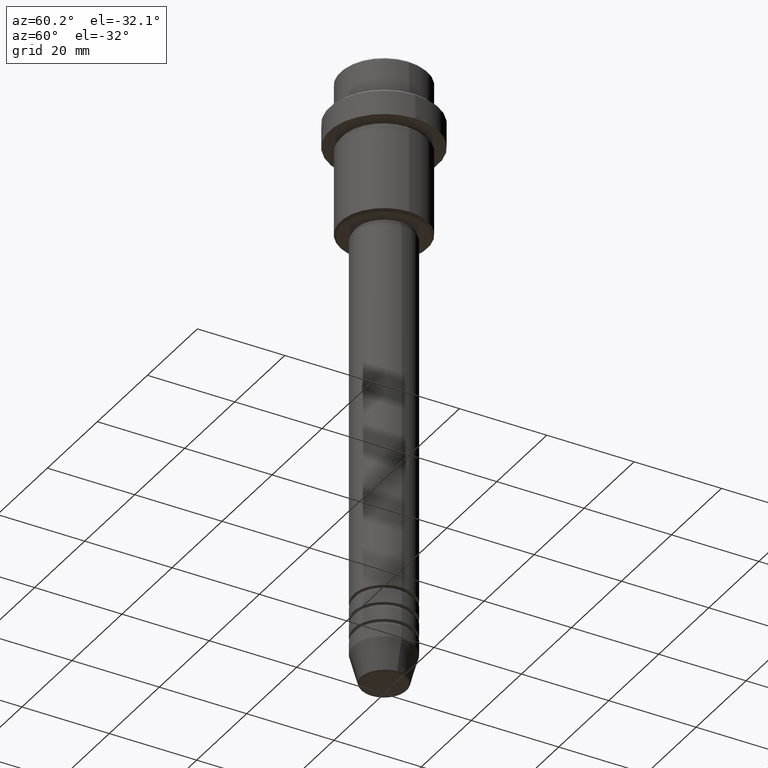
[diagram: clean part render]
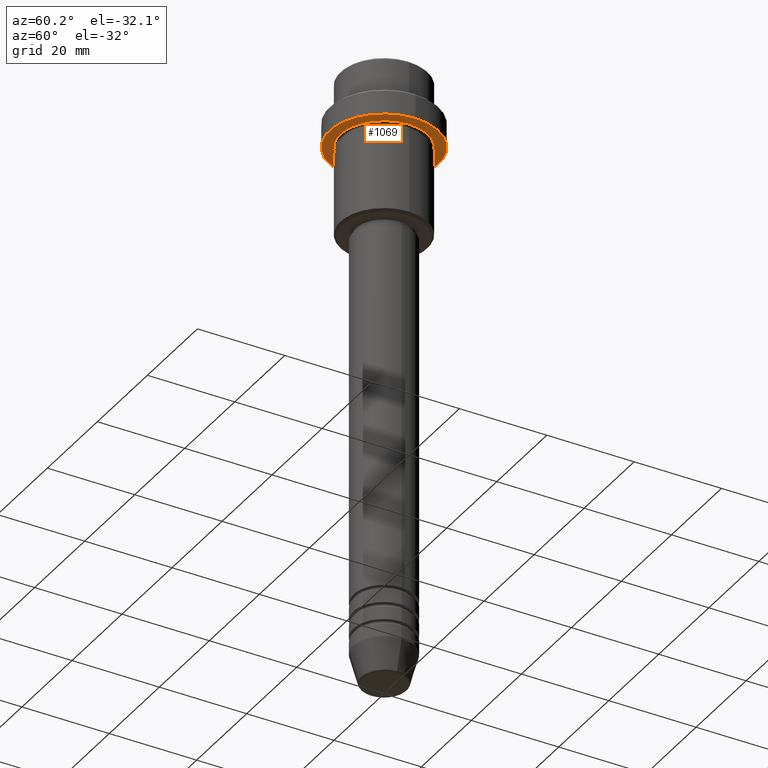
[diagram: same view with one face highlighted and labeled with its STEP entity id]
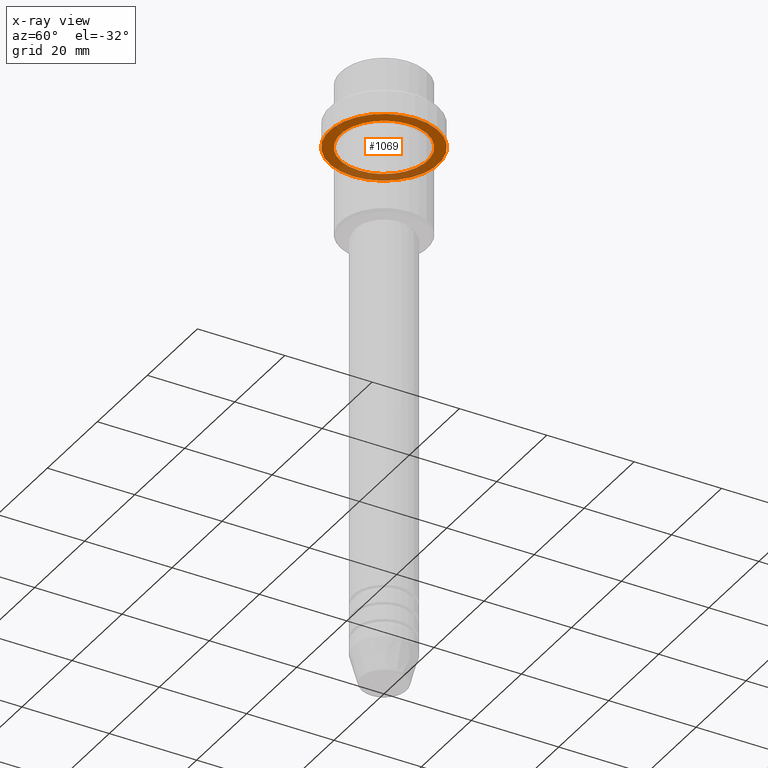
[diagram: x-ray of the same camera — body ghosted, the highlighted face saturated]
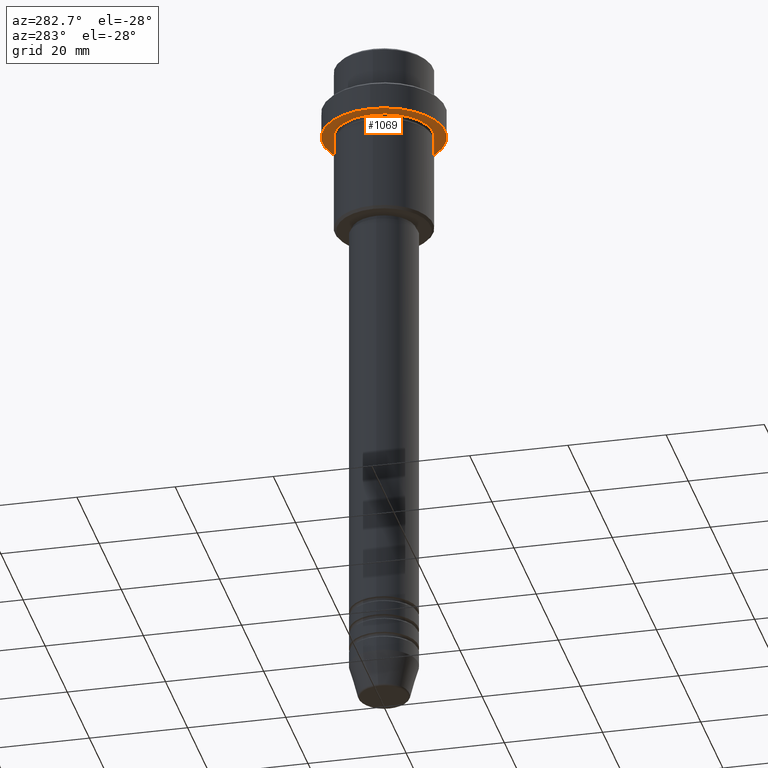
[diagram: same view with one face highlighted and labeled with its STEP entity id]
A machine part, auxiliary view. The second image highlights one B-rep face of the part: STEP entity #1069.
The next image is the same camera in x-ray: the body ghosted, the highlighted face saturated — about 28% of this face is hidden behind the body in this view.
A second angle (auxiliary view) of the same face is appended — the face is thin or edge-on in the first view.
In plain terms, the highlighted planar face has unit normal (0, 0, -1).
Its self-contained STEP definition (entity closure, byte-faithful):
#16 = DIRECTION ( 'NONE',  ( 1.000000000000000000, 0.000000000000000000, 0.000000000000000000 ) ) ;
#66 = DIRECTION ( 'NONE',  ( 1.000000000000000000, 0.000000000000000000, 0.000000000000000000 ) ) ;
#102 = VERTEX_POINT ( 'NONE', #121 ) ;
#105 = AXIS2_PLACEMENT_3D ( 'NONE', #1366, #1043, #66 ) ;
#121 = CARTESIAN_POINT ( 'NONE',  ( -9.999999999999992895, 0.000000000000000000, -15.00000000000000000 ) ) ;
#122 = CARTESIAN_POINT ( 'NONE',  ( 9.999999999999992895, 1.224646799147352468E-15, -15.00000000000000000 ) ) ;
#134 = EDGE_CURVE ( 'NONE', #1092, #382, #1011, .T. ) ;
#173 = CIRCLE ( 'NONE', #105, 12.50000000000000000 ) ;
#240 = DIRECTION ( 'NONE',  ( -0.000000000000000000, -0.000000000000000000, 1.000000000000000000 ) ) ;
#299 = EDGE_CURVE ( 'NONE', #382, #1092, #173, .T. ) ;
#307 = PLANE ( 'NONE',  #1038 ) ;
#340 = DIRECTION ( 'NONE',  ( -0.000000000000000000, -0.000000000000000000, 1.000000000000000000 ) ) ;
#346 = AXIS2_PLACEMENT_3D ( 'NONE', #792, #1000, #16 ) ;
#370 = CIRCLE ( 'NONE', #547, 9.999999999999992895 ) ;
#382 = VERTEX_POINT ( 'NONE', #1181 ) ;
#421 = FACE_BOUND ( 'NONE', #605, .T. ) ;
#460 = ORIENTED_EDGE ( 'NONE', *, *, #299, .F. ) ;
#525 = DIRECTION ( 'NONE',  ( 0.000000000000000000, 0.000000000000000000, -1.000000000000000000 ) ) ;
#547 = AXIS2_PLACEMENT_3D ( 'NONE', #1189, #240, #668 ) ;
#605 = EDGE_LOOP ( 'NONE', ( #1241, #623 ) ) ;
#623 = ORIENTED_EDGE ( 'NONE', *, *, #831, .T. ) ;
#668 = DIRECTION ( 'NONE',  ( -1.000000000000000000, 0.000000000000000000, 0.000000000000000000 ) ) ;
#736 = DIRECTION ( 'NONE',  ( -1.000000000000000000, 0.000000000000000000, -0.000000000000000000 ) ) ;
#792 = CARTESIAN_POINT ( 'NONE',  ( 0.000000000000000000, 0.000000000000000000, -15.00000000000000000 ) ) ;
#831 = EDGE_CURVE ( 'NONE', #1171, #102, #1104, .T. ) ;
#850 = CARTESIAN_POINT ( 'NONE',  ( 0.000000000000000000, 12.50000000000000000, -15.00000000000000000 ) ) ;
#981 = EDGE_LOOP ( 'NONE', ( #460, #1285 ) ) ;
#986 = CARTESIAN_POINT ( 'NONE',  ( 0.000000000000000000, 0.000000000000000000, -15.00000000000000000 ) ) ;
#1000 = DIRECTION ( 'NONE',  ( -0.000000000000000000, -0.000000000000000000, 1.000000000000000000 ) ) ;
#1011 = CIRCLE ( 'NONE', #346, 12.50000000000000000 ) ;
#1038 = AXIS2_PLACEMENT_3D ( 'NONE', #850, #525, #736 ) ;
#1043 = DIRECTION ( 'NONE',  ( -0.000000000000000000, -0.000000000000000000, 1.000000000000000000 ) ) ;
#1045 = CARTESIAN_POINT ( 'NONE',  ( -12.50000000000000000, 1.530808498934191521E-15, -15.00000000000000000 ) ) ;
#1060 = FACE_OUTER_BOUND ( 'NONE', #981, .T. ) ;
#1069 = ADVANCED_FACE ( 'NONE', ( #421, #1060 ), #307, .T. ) ;
#1092 = VERTEX_POINT ( 'NONE', #1045 ) ;
#1104 = CIRCLE ( 'NONE', #1200, 9.999999999999992895 ) ;
#1171 = VERTEX_POINT ( 'NONE', #122 ) ;
#1181 = CARTESIAN_POINT ( 'NONE',  ( 12.50000000000000000, 0.000000000000000000, -15.00000000000000000 ) ) ;
#1189 = CARTESIAN_POINT ( 'NONE',  ( 0.000000000000000000, 0.000000000000000000, -15.00000000000000000 ) ) ;
#1200 = AXIS2_PLACEMENT_3D ( 'NONE', #986, #340, #1408 ) ;
#1229 = EDGE_CURVE ( 'NONE', #102, #1171, #370, .T. ) ;
#1241 = ORIENTED_EDGE ( 'NONE', *, *, #1229, .T. ) ;
#1285 = ORIENTED_EDGE ( 'NONE', *, *, #134, .F. ) ;
#1366 = CARTESIAN_POINT ( 'NONE',  ( 0.000000000000000000, 0.000000000000000000, -15.00000000000000000 ) ) ;
#1408 = DIRECTION ( 'NONE',  ( -1.000000000000000000, 0.000000000000000000, 0.000000000000000000 ) ) ;